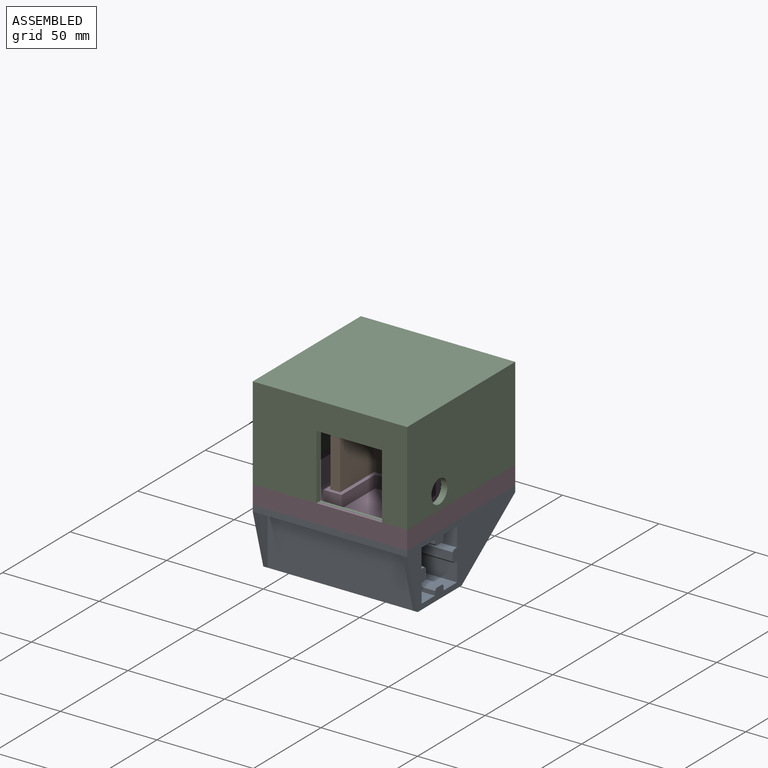
[diagram: assembled view]
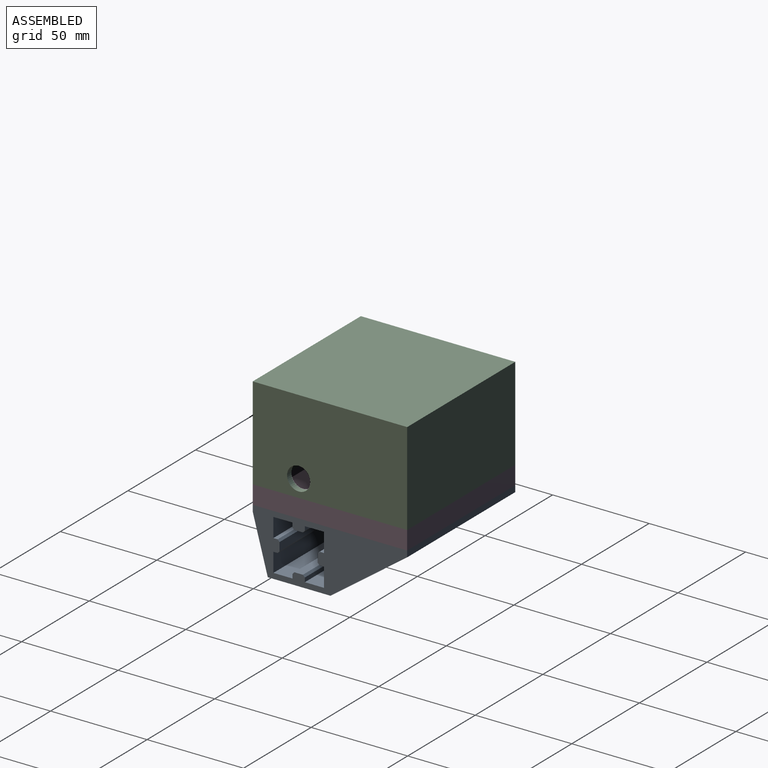
[diagram: assembled view, second angle]
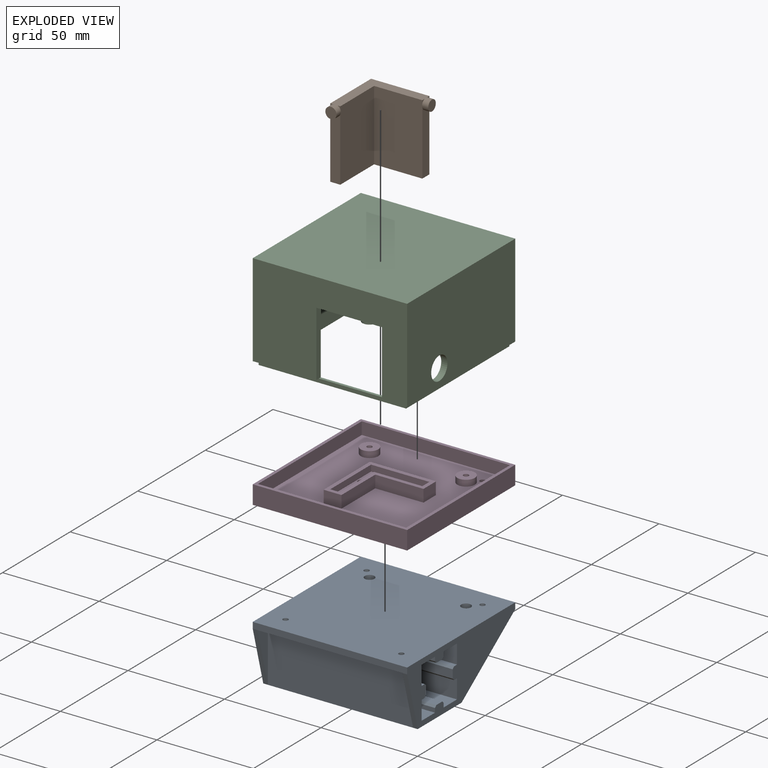
[diagram: exploded view]
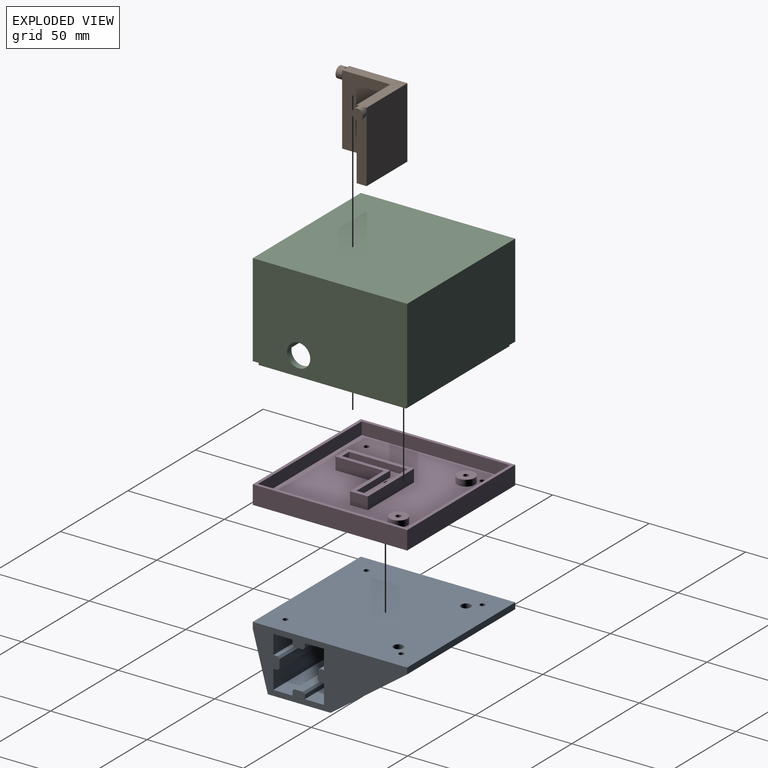
[diagram: exploded view, second angle]
ASSEMBLY  parts=4 mates=4
PART A: 54 faces, bbox 31.8x80x80 mm
  f0: plane 80x9.9mm, normal (0,0,1), area 789mm2, adj f3,f4,f11,f12,f47,f48,f50,f51
  f1: plane 80x3.2mm, normal (0,0,-1), area 256mm2, adj f3,f4,f6,f37,f44,f45
  f2: plane 80x32.5mm, normal (1,0,0), area 2600mm2, adj f3,f4,f35,f40,f42,f43,f44,f45
  f3: plane 80x31.8mm, normal (0,1,0), area 1256.2mm2, adj f0,f1,f2,f5,f6,f7,f8,f9
  f4: plane 80x31.8mm, normal (0,-1,0), area 1256.2mm2, adj f0,f1,f2,f5,f6,f7,f8,f9
  f5: plane 80x3.2mm, normal (0,0,1), area 256mm2, adj f3,f4,f6,f41,f42,f43
  f6: plane 80x80mm, normal (-1,0,0), area 6337.8mm2, adj f1,f3,f4,f5,f46,f47,f49,f51
  f7: plane 80x9.9mm, normal (1,0,0), area 792mm2, adj f3,f4,f8,f25
  f8: plane 80x2.2mm, normal (0,0,1), area 176mm2, adj f3,f4,f7,f33
  f9: plane 80x4.4mm, normal (1,0,0), area 352mm2, adj f3,f4,f32,f33
  f10: plane 80x2.2mm, normal (0,0,-1), area 176mm2, adj f3,f4,f11,f32
  f11: plane 80x9.9mm, normal (1,0,0), area 789.9mm2, adj f0,f3,f4,f10,f47,f51
  f12: plane 80x2.2mm, normal (-1,0,0), area 176mm2, adj f0,f3,f4,f31
  f13: plane 80x4.4mm, normal (0,0,1), area 352mm2, adj f3,f4,f30,f31
  f14: plane 80x2.2mm, normal (1,0,0), area 176mm2, adj f3,f4,f15,f30
  f15: plane 80x9.9mm, normal (0,0,1), area 792mm2, adj f3,f4,f14,f16
  f16: plane 80x9.9mm, normal (-1,0,0), area 792mm2, adj f3,f4,f15,f17
  f17: plane 80x2.2mm, normal (0,0,-1), area 176mm2, adj f3,f4,f16,f26
  f18: plane 80x4.4mm, normal (-1,0,0), area 352mm2, adj f3,f4,f26,f29
  f19: plane 80x2.2mm, normal (0,0,1), area 176mm2, adj f3,f4,f20,f29
  f20: plane 80x9.9mm, normal (-1,0,0), area 792mm2, adj f3,f4,f19,f21
  f21: plane 80x9.9mm, normal (0,0,-1), area 792mm2, adj f3,f4,f20,f22
  f22: plane 80x2.2mm, normal (1,0,0), area 176mm2, adj f3,f4,f21,f28
  f23: plane 80x4.4mm, normal (0,0,-1), area 352mm2, adj f3,f4,f27,f28
  f24: plane 80x2.2mm, normal (-1,0,0), area 176mm2, adj f3,f4,f25,f27
  f25: plane 80x9.9mm, normal (0,0,-1), area 792mm2, adj f3,f4,f7,f24
  f26: plane 80x1mm, normal (-0.71,0,-0.71), area 113.1mm2, adj f3,f4,f17,f18
  f27: plane 80x1mm, normal (-0.71,0,-0.71), area 113.1mm2, adj f3,f4,f23,f24
  f28: plane 80x1mm, normal (0.71,0,-0.71), area 113.1mm2, adj f3,f4,f22,f23
  f29: plane 80x1mm, normal (-0.71,0,0.71), area 113.1mm2, adj f3,f4,f18,f19
  f30: plane 80x1mm, normal (0.71,0,0.71), area 113.1mm2, adj f3,f4,f13,f14
  f31: plane 80x1mm, normal (-0.71,0,0.71), area 113.1mm2, adj f3,f4,f12,f13
  f32: plane 80x1mm, normal (0.71,0,-0.71), area 113.1mm2, adj f3,f4,f9,f10
  f33: plane 80x1mm, normal (0.71,0,0.71), area 113.1mm2, adj f3,f4,f8,f9
  f34: plane 28.6x7.8mm, normal (0,-1,0), area 111.5mm2, adj f35,f37,f45
  f35: plane 75.2x28.6mm, normal (0,0,-1), area 2150.7mm2, adj f2,f34,f36,f37
  f36: plane 28.6x7.8mm, normal (0,1,0), area 111.5mm2, adj f35,f37,f44
  f37: plane 75.2x7.8mm, normal (1,0,0), area 586.6mm2, adj f1,f34,f35,f36
  f38: plane 39.7x28.6mm, normal (0,-1,0), area 567.7mm2, adj f40,f41,f42
  f39: plane 39.7x28.6mm, normal (0,1,0), area 567.7mm2, adj f40,f41,f43
  f40: plane 75.2x28.6mm, normal (0,0,1), area 2150.7mm2, adj f2,f38,f39,f41
  f41: plane 75.2x39.7mm, normal (1,0,0), area 2934.7mm2, adj f5,f38,f39,f40,f46,f49,f52,f53
  f42: plane 39.7x28.6mm, normal (0.81,0,0.58), area 117.4mm2, adj f2,f3,f5,f38
  f43: plane 39.7x28.6mm, normal (0.81,0,0.58), area 117.4mm2, adj f2,f4,f5,f39
  f44: plane 28.6x7.8mm, normal (0.26,0,-0.96), area 71.1mm2, adj f1,f2,f4,f36
  f45: plane 28.6x7.8mm, normal (0.26,0,-0.96), area 71.1mm2, adj f1,f2,f3,f34
  f46: cylinder r=1.35mm len=3.2mm, axis (-1,0,0), area 27.1mm2, adj f6,f41
  f47: cylinder r=1.35mm len=3.2mm, axis (-1,0,0), area 26mm2, adj f0,f6,f11,f48
  f48: cone r=0mm half-angle=59deg, axis (-1,0,0), area 5.4mm2, adj f0,f47
  f49: cylinder r=1.35mm len=3.2mm, axis (-1,0,0), area 27.1mm2, adj f6,f41
  f50: cone r=0mm half-angle=59deg, axis (-1,0,0), area 5.4mm2, adj f0,f51
  f51: cylinder r=1.35mm len=3.2mm, axis (-1,0,0), area 26mm2, adj f0,f6,f11,f50
  f52: cylinder r=2.5mm len=5mm, axis (-1,0,0), area 50.3mm2, adj f6,f41
  f53: cylinder r=2.5mm len=5mm, axis (-1,0,0), area 50.3mm2, adj f6,f41
PART B: 22 faces, bbox 33.7x33.6x37 mm
  f0: plane 1.32x1.32mm, normal (0,-1,0), area 0.7mm2, adj f4,f10,f19
  f1: plane 1.32x1.32mm, normal (0,-1,0), area 0.7mm2, adj f8,f10,f19
  f2: plane 1.56x1.56mm, normal (1,0,0), area 0.9mm2, adj f7,f10,f14
  f3: plane 1.56x1.56mm, normal (1,0,0), area 0.9mm2, adj f5,f10,f14
  f4: plane 36.7x25mm, normal (1,0,0), area 917.5mm2, adj f0,f5,f9,f10,f11,f21
  f5: plane 36.7x25mm, normal (0,-1,0), area 917.5mm2, adj f3,f4,f6,f10,f11,f13
  f6: plane 33.06x5.2mm, normal (1,0,0), area 165.3mm2, adj f5,f7,f11,f14
  f7: plane 36.7x30.2mm, normal (0,1,0), area 1108.3mm2, adj f2,f6,f8,f10,f11,f12
  f8: plane 36.7x30.2mm, normal (-1,0,0), area 1108.3mm2, adj f1,f7,f9,f10,f11,f18
  f9: plane 32.82x5.2mm, normal (0,-1,0), area 164.6mm2, adj f4,f8,f11,f19
  f10: plane 30.2x30.2mm, normal (0,0,1), area 287mm2, adj f0,f1,f2,f3,f4,f5,f7,f8
  f11: plane 30.2x30.2mm, normal (0,0,-1), area 287mm2, adj f4,f5,f6,f7,f8,f9
  f12: plane 2.08x0.2mm, normal (-1,0,0), area 0.3mm2, adj f7,f14
  f13: plane 2.08x0.2mm, normal (-1,0,0), area 0.3mm2, adj f5,f14
  f14: cylinder r=2.8mm len=5.6mm, axis (-1,0,0), area 56.3mm2, adj f2,f3,f6,f12,f13,f15,f16
  f15: plane 5.6x5.6mm, normal (1,0,0), area 24.6mm2, adj f14
  f16: plane 2.08x0.2mm, normal (-1,0,0), area 0.3mm2, adj f10,f14
  f17: plane 2.57x0.3mm, normal (0,1,0), area 0.5mm2, adj f10,f19
  f18: plane 2.57x0.3mm, normal (0,1,0), area 0.5mm2, adj f8,f19
  f19: cylinder r=2.9mm len=5.8mm, axis (0,1,0), area 58.3mm2, adj f0,f1,f9,f17,f18,f20,f21
  f20: plane 5.8x5.8mm, normal (0,-1,0), area 26.4mm2, adj f19
  f21: plane 2.57x0.3mm, normal (0,1,0), area 0.5mm2, adj f4,f19
PART C: 35 faces, bbox 80x80x50.2 mm
  f0: plane 80x48.2mm, normal (0,-1,0), area 2706.8mm2, adj f2,f4,f8,f10,f17,f18,f19
  f1: plane 73.6x47mm, normal (0,1,0), area 2310mm2, adj f5,f7,f9,f16,f17,f18,f19,f20
  f2: plane 80x80mm, normal (0,0,-1), area 501.8mm2, adj f0,f3,f4,f8,f12,f13,f14,f15
  f3: plane 80x48.2mm, normal (0,1,0), area 3856mm2, adj f2,f4,f8,f10
  f4: plane 80x48.2mm, normal (-1,0,0), area 3856mm2, adj f0,f2,f3,f10
  f5: plane 73.6x47mm, normal (1,0,0), area 3459.2mm2, adj f1,f6,f9,f16
  f6: plane 73.6x47mm, normal (0,-1,0), area 3310.8mm2, adj f5,f7,f9,f16,f23,f24,f25,f28
  f7: plane 73.6x47mm, normal (-1,0,0), area 3346.1mm2, adj f1,f6,f9,f11,f16
  f8: plane 80x48.2mm, normal (1,0,0), area 3742.9mm2, adj f0,f2,f3,f10,f11
  f9: plane 73.6x73.6mm, normal (0,0,-1), area 5417mm2, adj f1,f5,f6,f7
  f10: plane 80x80mm, normal (0,0,1), area 6400mm2, adj f0,f3,f4,f8
  f11: cylinder r=6mm len=12mm, axis (1,0,0), area 120.6mm2, adj f7,f8
  f12: plane 76.4x2mm, normal (-1,0,0), area 152.8mm2, adj f2,f13,f15,f16
  f13: plane 76.4x2mm, normal (0,1,0), area 152.8mm2, adj f2,f12,f14,f16
  f14: plane 76.4x2mm, normal (1,0,0), area 152.8mm2, adj f2,f13,f15,f16
  f15: plane 76.4x2mm, normal (0,-1,0), area 152.8mm2, adj f2,f12,f14,f16,f20
  f16: plane 76.4x76.4mm, normal (0,0,-1), area 627.9mm2, adj f1,f5,f6,f7,f12,f13,f14,f15
  f17: plane 33.8x3.2mm, normal (-1,0,0), area 108.2mm2, adj f0,f1,f2,f18,f20
  f18: plane 34x3.2mm, normal (0,0,-1), area 108.8mm2, adj f0,f1,f17,f19
  f19: plane 33.8x3.2mm, normal (1,0,0), area 108.2mm2, adj f0,f1,f2,f18,f20
  f20: plane 34x1.4mm, normal (0,0,1), area 47.6mm2, adj f1,f15,f17,f19
  f21: cylinder r=3.75mm len=7.5mm, axis (0,0,-1), area 41.2mm2, adj f16,f22,f23,f24
  f22: plane 7.7x7.5mm, normal (0,0,1), area 40.5mm2, adj f21,f23,f24,f31,f34
  f23: plane 11.25x10mm, normal (-1,0,0), area 74.1mm2, adj f6,f16,f21,f22,f25,f31
  f24: plane 11.25x10mm, normal (1,0,0), area 74.1mm2, adj f6,f16,f21,f22,f25,f31
  f25: plane 7.42x1.71mm, normal (0,0,1), area 9.4mm2, adj f6,f23,f24,f31
  f26: cylinder r=3.75mm len=7.5mm, axis (0,0,-1), area 41.2mm2, adj f16,f27,f28,f29
  f27: plane 7.7x7.5mm, normal (0,0,1), area 40.5mm2, adj f26,f28,f29,f32,f33
  f28: plane 11.25x10mm, normal (-1,0,0), area 74.1mm2, adj f6,f16,f26,f27,f30,f32
  f29: plane 11.25x10mm, normal (1,0,0), area 74.1mm2, adj f6,f16,f26,f27,f30,f32
  f30: plane 7.42x1.71mm, normal (0,0,1), area 9.4mm2, adj f6,f28,f29,f32
  f31: cone r=10.75mm half-angle=45deg, axis (0,0,1), area 76.5mm2, adj f22,f23,f24,f25
  f32: cone r=10.75mm half-angle=45deg, axis (0,0,1), area 76.5mm2, adj f27,f28,f29,f30
  f33: cylinder r=1.35mm len=3.2mm, axis (0,0,-1), area 27.1mm2, adj f16,f27
  f34: cylinder r=1.35mm len=3.2mm, axis (0,0,-1), area 27.1mm2, adj f16,f22
PART D: 45 faces, bbox 80x80x9.6 mm
  f0: plane 5.2x3.2mm, normal (0,1,0), area 16.6mm2, adj f1,f10,f12,f13
  f1: plane 25x3.2mm, normal (-1,0,0), area 80mm2, adj f0,f2,f12,f13
  f2: plane 25x3.2mm, normal (0,1,0), area 80mm2, adj f1,f3,f12,f13
  f3: plane 5.2x3.2mm, normal (-1,0,0), area 16.6mm2, adj f2,f4,f12,f13
  f4: plane 30.2x3.2mm, normal (0,-1,0), area 96.6mm2, adj f3,f10,f12,f13
  f5: plane 34.2x6.4mm, normal (0,1,0), area 218.9mm2, adj f6,f11,f12,f23
  f6: plane 34.2x6.4mm, normal (-1,0,0), area 218.9mm2, adj f5,f7,f12,f23
  f7: plane 9.2x6.4mm, normal (0,-1,0), area 58.9mm2, adj f6,f8,f12,f23
  f8: plane 25x6.4mm, normal (1,0,0), area 160mm2, adj f7,f9,f12,f23
  f9: plane 25x6.4mm, normal (0,-1,0), area 160mm2, adj f8,f11,f12,f23
  f10: plane 30.2x3.2mm, normal (1,0,0), area 96.6mm2, adj f0,f4,f12,f13
  f11: plane 9.2x6.4mm, normal (1,0,0), area 58.9mm2, adj f5,f9,f12,f23
  f12: plane 34.2x34.2mm, normal (0,0,1), area 257.6mm2, adj f0,f1,f2,f3,f4,f5,f6,f7
  f13: plane 30.2x30.2mm, normal (0,0,1), area 261.9mm2, adj f0,f1,f2,f3,f4,f10,f25,f28
  f14: plane 80x9.6mm, normal (-1,0,0), area 768mm2, adj f15,f21,f22,f24
  f15: plane 80x9.6mm, normal (0,-1,0), area 768mm2, adj f14,f16,f22,f24
  f16: plane 80x9.6mm, normal (1,0,0), area 768mm2, adj f15,f21,f22,f24
  f17: plane 76.8x6.4mm, normal (0,1,0), area 491.5mm2, adj f18,f20,f22,f23
  f18: plane 76.8x6.4mm, normal (1,0,0), area 491.5mm2, adj f17,f19,f22,f23
  f19: plane 76.8x6.4mm, normal (0,-1,0), area 491.5mm2, adj f18,f20,f22,f23
  f20: plane 76.8x6.4mm, normal (-1,0,0), area 491.5mm2, adj f17,f19,f22,f23
  f21: plane 80x9.6mm, normal (0,1,0), area 768mm2, adj f14,f16,f22,f24
  f22: plane 80x80mm, normal (0,0,1), area 501.8mm2, adj f14,f15,f16,f17,f18,f19,f20,f21
  f23: plane 76.8x76.8mm, normal (0,0,1), area 5200.6mm2, adj f5,f6,f7,f8,f9,f11,f17,f18
  f24: plane 80x80mm, normal (0,0,-1), area 6237.3mm2, adj f14,f15,f16,f21,f27,f30,f31,f32
  f25: cylinder r=2mm len=4mm, axis (0,0,-1), area 30.2mm2, adj f13,f26
  f26: plane 8x8mm, normal (0,0,-1), area 37.7mm2, adj f25,f27
  f27: cylinder r=4mm len=8mm, axis (0,0,-1), area 100.5mm2, adj f24,f26
  f28: cylinder r=2mm len=4mm, axis (0,0,-1), area 30.2mm2, adj f13,f29
  f29: plane 8x8mm, normal (0,0,-1), area 37.7mm2, adj f28,f30
  f30: cylinder r=4mm len=8mm, axis (0,0,-1), area 100.5mm2, adj f24,f29
  f31: cylinder r=1.35mm len=3.2mm, axis (0,0,-1), area 27.1mm2, adj f23,f24
  f32: cylinder r=1.35mm len=3.2mm, axis (0,0,-1), area 27.1mm2, adj f23,f24
  f33: cylinder r=1.35mm len=3.2mm, axis (0,0,-1), area 27.1mm2, adj f23,f24
  f34: cylinder r=1.35mm len=3.2mm, axis (0,0,-1), area 27.1mm2, adj f23,f24
  f35: cylinder r=4.55mm len=9.1mm, axis (0,0,-1), area 91.5mm2, adj f23,f36
  f36: plane 9.1x9.1mm, normal (0,0,1), area 59.3mm2, adj f35,f39
  f37: cylinder r=4.55mm len=9.1mm, axis (0,0,-1), area 91.5mm2, adj f23,f38
  f38: plane 9.1x9.1mm, normal (0,0,1), area 59.3mm2, adj f37,f42
  f39: cylinder r=1.35mm len=3.4mm, axis (0,0,-1), area 28.8mm2, adj f36,f40
  f40: plane 5x5mm, normal (0,0,-1), area 13.9mm2, adj f39,f41
  f41: cylinder r=2.5mm len=5mm, axis (0,0,-1), area 47.1mm2, adj f24,f40
  f42: cylinder r=1.35mm len=3.4mm, axis (0,0,-1), area 28.8mm2, adj f38,f43
  f43: plane 5x5mm, normal (0,0,-1), area 13.9mm2, adj f42,f44
  f44: cylinder r=2.5mm len=5mm, axis (0,0,-1), area 47.1mm2, adj f24,f43
PLACE A rot(axis=(-0.58,0.58,0.58),120deg) t=(4.86,-7.24,16.16)mm
PLACE B t=(5.25,-4,22.56)mm
PLACE C t=(-6.27,-11.57,70.76)mm
PLACE D t=(5.25,-5.38,16.16)mm
MATE pin_slot A.f49 <-> D.f31  axis (0,0,1) through (-32.88,30.72,16.16)mm
MATE planar B.f11 <-> D.f13  axis (0,0,-1) through (-13.08,5.72,22.56)mm
MATE planar B.f11 <-> D.f13  axis (0,0,-1) through (-13.08,5.72,22.56)mm
MATE planar C.f2 <-> D.f22  axis (0,0,-1) through (-42.88,-39.28,25.76)mm
